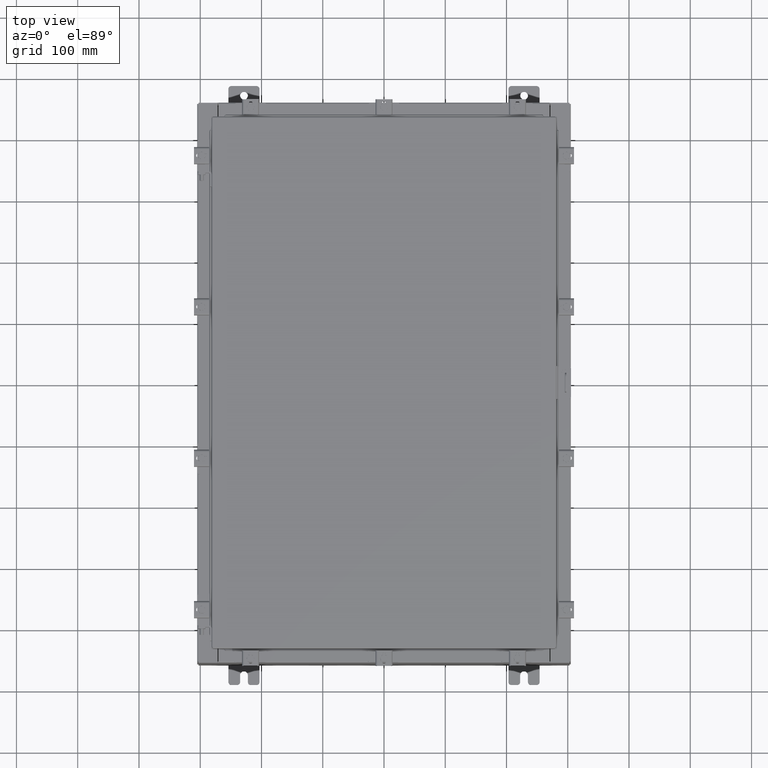
[diagram: clean part render]
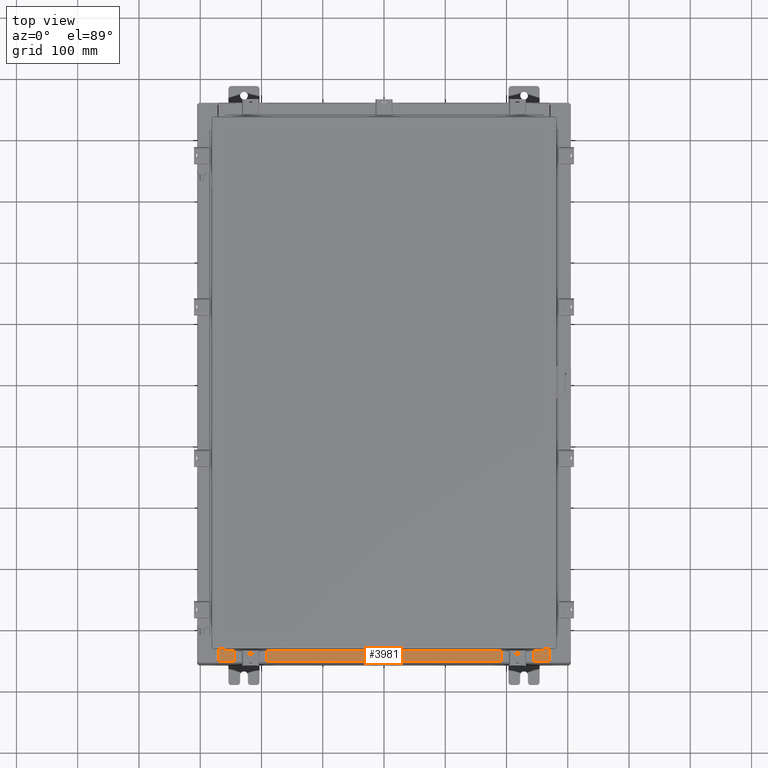
[diagram: same view with one face highlighted and labeled with its STEP entity id]
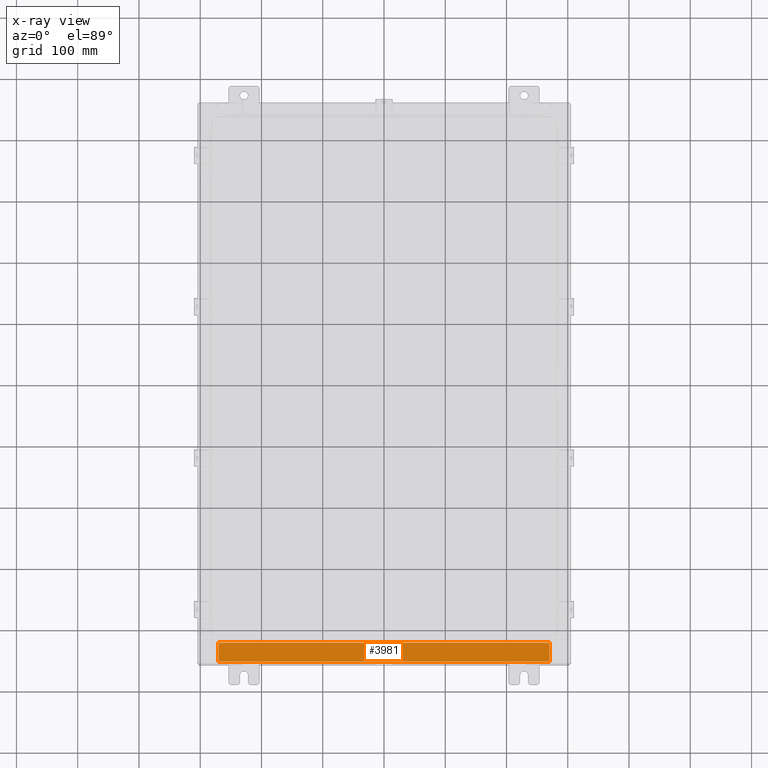
[diagram: x-ray of the same camera — body ghosted, the highlighted face saturated]
A machine part, top view. The second image highlights one B-rep face of the part: STEP entity #3981.
The next image is the same camera in x-ray: the body ghosted, the highlighted face saturated — about 0% of this face is hidden behind the body in this view.
In plain terms, the highlighted planar face has unit normal (-0, -0, 1).
Its self-contained STEP definition (entity closure, byte-faithful):
#7 = ORIENTED_EDGE ( 'NONE', *, *, #12239, .F. ) ;
#130 = EDGE_CURVE ( 'NONE', #12439, #10654, #2149, .T. ) ;
#697 = CARTESIAN_POINT ( 'NONE',  ( 0.0000000000000000000, 1.782631094477737600E-014, 5.000000000000000000 ) ) ;
#1692 = DIRECTION ( 'NONE',  ( -1.000000000000000000, -5.136404305013091600E-017, 1.831837571187793700E-031 ) ) ;
#2110 = PLANE ( 'NONE',  #3733 ) ;
#2149 = LINE ( 'NONE', #22298, #6932 ) ;
#2572 = EDGE_CURVE ( 'NONE', #19541, #12439, #10213, .T. ) ;
#2673 = FACE_OUTER_BOUND ( 'NONE', #21519, .T. ) ;
#3577 = VECTOR ( 'NONE', #4597, 39.37007874015748100 ) ;
#3733 = AXIS2_PLACEMENT_3D ( 'NONE', #697, #23321, #23242 ) ;
#3981 = ADVANCED_FACE ( 'NONE', ( #2673 ), #2110, .T. ) ;
#4151 = LINE ( 'NONE', #19753, #3577 ) ;
#4597 = DIRECTION ( 'NONE',  ( -0.0000000000000000000, -1.000000000000000000, 3.566381192773190000E-015 ) ) ;
#5580 = CARTESIAN_POINT ( 'NONE',  ( -10.63720000000000200, -0.08770000000000081900, 5.000000000000000000 ) ) ;
#6425 = CARTESIAN_POINT ( 'NONE',  ( 10.63720000000000400, -0.08770000000000047200, 5.000000000000000000 ) ) ;
#6932 = VECTOR ( 'NONE', #22226, 39.37007874015748100 ) ;
#8089 = ORIENTED_EDGE ( 'NONE', *, *, #2572, .F. ) ;
#8923 = CARTESIAN_POINT ( 'NONE',  ( 4.504626575497439200E-018, -0.08770000000000081900, 5.000000000000000000 ) ) ;
#9036 = ORIENTED_EDGE ( 'NONE', *, *, #12231, .T. ) ;
#9507 = LINE ( 'NONE', #8923, #13740 ) ;
#9653 = VECTOR ( 'NONE', #16528, 39.37007874015748100 ) ;
#10213 = LINE ( 'NONE', #16806, #9653 ) ;
#10654 = VERTEX_POINT ( 'NONE', #5580 ) ;
#12231 = EDGE_CURVE ( 'NONE', #16791, #10654, #9507, .T. ) ;
#12239 = EDGE_CURVE ( 'NONE', #16791, #19541, #4151, .T. ) ;
#12439 = VERTEX_POINT ( 'NONE', #18533 ) ;
#13318 = CARTESIAN_POINT ( 'NONE',  ( 10.63720000000000200, -1.287299999999999900, 5.000000000000004400 ) ) ;
#13740 = VECTOR ( 'NONE', #1692, 39.37007874015748100 ) ;
#16528 = DIRECTION ( 'NONE',  ( -1.000000000000000000, 0.0000000000000000000, 0.0000000000000000000 ) ) ;
#16791 = VERTEX_POINT ( 'NONE', #6425 ) ;
#16806 = CARTESIAN_POINT ( 'NONE',  ( 10.63720000000000400, -1.287299999999999900, 5.000000000000003600 ) ) ;
#18533 = CARTESIAN_POINT ( 'NONE',  ( -10.63720000000000200, -1.287299999999999200, 5.000000000000004400 ) ) ;
#19541 = VERTEX_POINT ( 'NONE', #13318 ) ;
#19753 = CARTESIAN_POINT ( 'NONE',  ( 10.63720000000000200, -1.300299999999999800, 5.000000000000004400 ) ) ;
#20436 = ORIENTED_EDGE ( 'NONE', *, *, #130, .F. ) ;
#21519 = EDGE_LOOP ( 'NONE', ( #20436, #8089, #7, #9036 ) ) ;
#22226 = DIRECTION ( 'NONE',  ( -0.0000000000000000000, 1.000000000000000000, -3.566381192773190000E-015 ) ) ;
#22298 = CARTESIAN_POINT ( 'NONE',  ( -10.63720000000000200, -0.07469999999999973900, 5.000000000000000000 ) ) ;
#23242 = DIRECTION ( 'NONE',  ( 0.0000000000000000000, -1.000000000000000000, 3.566381192773190000E-015 ) ) ;
#23321 = DIRECTION ( 'NONE',  ( 0.0000000000000000000, 3.566381192773190000E-015, 1.000000000000000000 ) ) ;